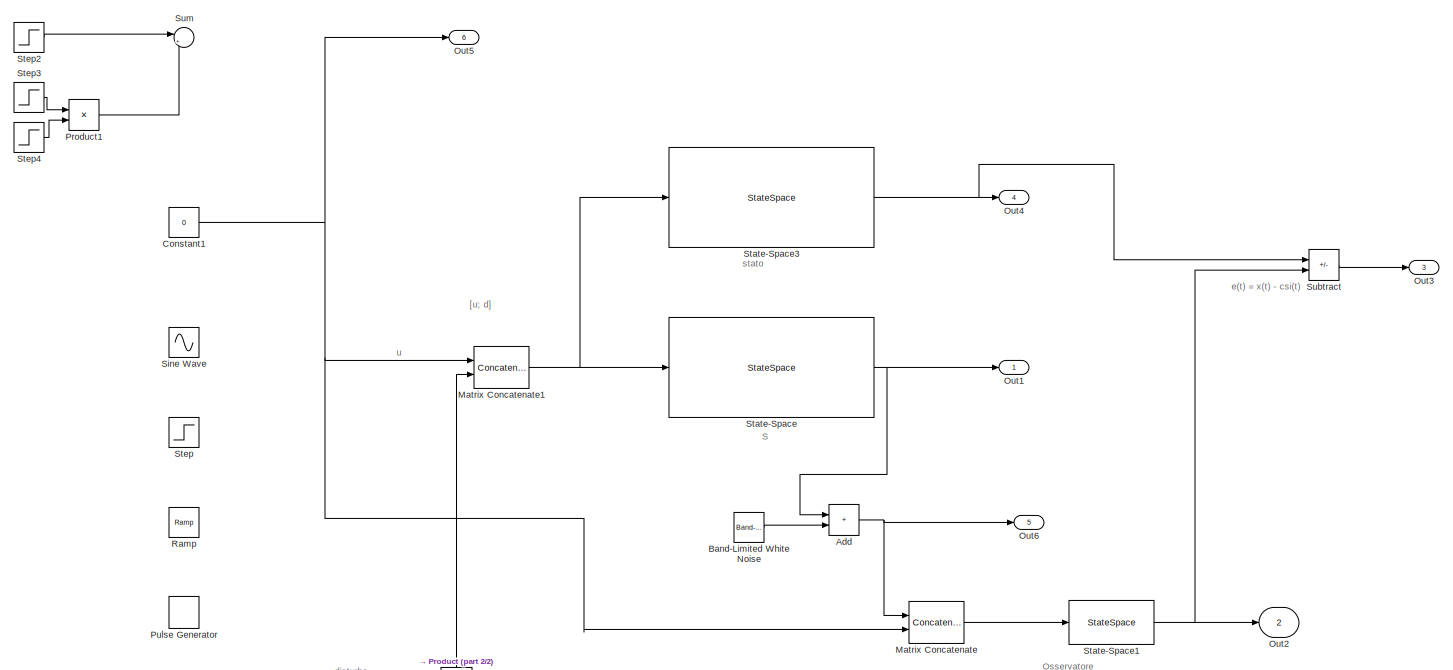
[diagram: root canvas - part 1/2, most of the canvas]
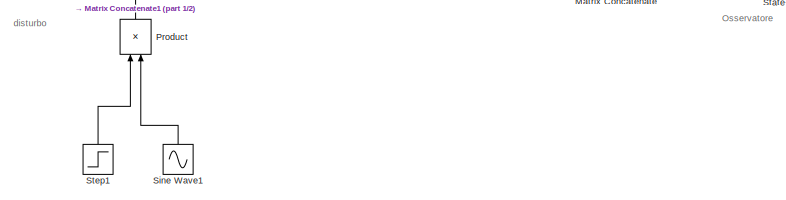
[diagram: root canvas - part 2/2, bottom center region]
MODEL slx_7f5a2633758a
KIND model
CONFIG AbsTol = auto
CONFIG EnableMultiTasking = off
CONFIG FixedStep = auto
CONFIG MaxStep = auto
CONFIG MinStep = auto
CONFIG RelTol = 1e-3
CONFIG SampleTimeConstraint = Unconstrained
CONFIG SolverName = VariableStepAuto
CONFIG StartTime = 0.0
CONFIG StopTime = 100
BLOCK [Sum] Add
  IconShape = rectangular
  Ports = [2, 1]
BLOCK [Reference] Band-Limited White Noise  REF=simulink/Sources/Band-Limited
White Noise
  Ports = [0, 1]
  SourceBlock = simulink/Sources/Band-Limited\nWhite Noise
  SourceProductBaseCode = SL
  SourceType = Band-Limited White Noise.
BLOCK [Constant] Constant1
  Value = 0
BLOCK [Concatenate] Matrix Concatenate
  Mode = Multidimensional array
  Ports = [2, 1]
BLOCK [Concatenate] Matrix Concatenate1
  Mode = Multidimensional array
  Ports = [2, 1]
BLOCK [Outport] Out1
  SignalName = y(t)
BLOCK [Outport] Out2
  Port = 2
  SignalName = csi(t)
BLOCK [Outport] Out3
  Port = 3
  SignalName = e(t)
BLOCK [Outport] Out4
  Port = 4
  SignalName = x(t)
BLOCK [Outport] Out5
  Port = 6
  SignalName = ingresso
BLOCK [Outport] Out6
  Port = 5
  SignalName = yd(t)
BLOCK [Product] Product
  NameLocation = right
  Ports = [2, 1]
BLOCK [Product] Product1
  Ports = [2, 1]
BLOCK [DiscretePulseGenerator] Pulse Generator
  Amplitude = 2
  Period = 100
  Ports = [0, 1]
  PulseType = Time based
  PulseWidth = 5
BLOCK [Reference] Ramp  REF=simulink/Sources/Ramp
  Ports = [0, 1]
  SourceBlock = simulink/Sources/Ramp
  SourceProductBaseCode = SL
  SourceType = Ramp
BLOCK [Sin] Sine Wave
  Ports = [0, 1]
  SampleTime = 0
BLOCK [Sin] Sine Wave1
  Amplitude = d
  NameLocation = right
  Ports = [0, 1]
  SampleTime = 0
BLOCK [StateSpace] State-Space
  A = A
  B = [B M]
  C = C
  D = [0 0]
  InitialCondition = x0
  ParameterTunability = Unconstrained
  Ports = [1, 1]
BLOCK [StateSpace] State-Space1
  A = H
  B = [V R]
  C = eye(4)
  D = [0 0; 0 0; 0 0; 0 0]
  InitialCondition = csi0
  Ports = [1, 1]
BLOCK [StateSpace] State-Space3
  A = A_n
  B = [B_n M_n]
  C = eye(4)
  D = [0 0;0 0;0 0;0 0]
  InitialCondition = x0
  ParameterTunability = Unconstrained
  Ports = [1, 1]
BLOCK [Step] Step
  After = 0
  Before = 2
  SampleTime = 0
  Time = 3
BLOCK [Step] Step1
  After = 0
  Before = 1
  NameLocation = right
  SampleTime = 0
  Time = 15
BLOCK [Step] Step2
  After = 0
  Before = 5
  SampleTime = 0
  Time = 5
BLOCK [Step] Step3
  After = -5
  SampleTime = 0
  Time = 10
BLOCK [Step] Step4
  After = 0
  Before = 1
  SampleTime = 0
  Time = 15
BLOCK [Sum] Subtract
  IconShape = rectangular
  Inputs = +-
  Ports = [2, 1]
BLOCK [Sum] Sum
  Inputs = |++
  NameLocation = top
  Ports = [2, 1]
ANNOTATION (root): e(t) = x(t) - csi(t)
ANNOTATION (root): S
ANNOTATION (root): Osservatore
ANNOTATION (root): [u; d]
ANNOTATION (root): disturbo
ANNOTATION (root): u
ANNOTATION (root): stato
NET Add:1 -> Matrix Concatenate:1, Out6:1
LINE Band-Limited White Noise:1 -> Add:2
NET Constant1:1 -> Matrix Concatenate1:1, Matrix Concatenate:2, Out5:1
NET Matrix Concatenate1:1 -> State-Space3:1, State-Space:1
LINE Matrix Concatenate:1 -> State-Space1:1
LINE Product1:1 -> Sum:2
LINE Product:1 -> Matrix Concatenate1:2
LINE Sine Wave1:1 -> Product:2
NET State-Space1:1 -> Out2:1, Subtract:2
NET State-Space3:1 -> Out4:1, Subtract:1
NET State-Space:1 -> Add:1, Out1:1
LINE Step1:1 -> Product:1
LINE Step2:1 -> Sum:1
LINE Step3:1 -> Product1:1
LINE Step4:1 -> Product1:2
LINE Subtract:1 -> Out3:1
note: NET lines group one-source signal fan-out (src -> all destinations, sorted); 1:1 wires keep LINE
